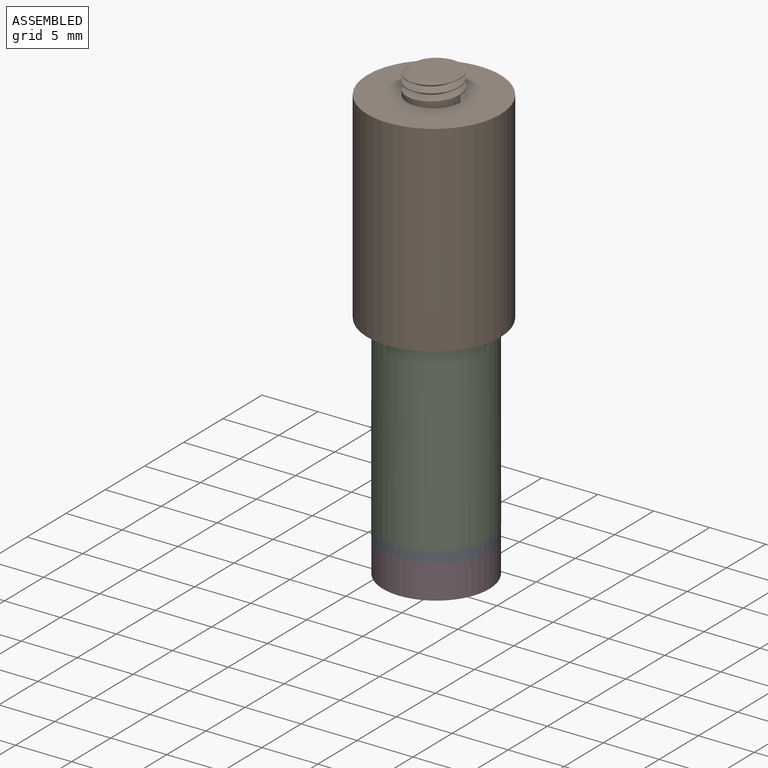
[diagram: assembled view]
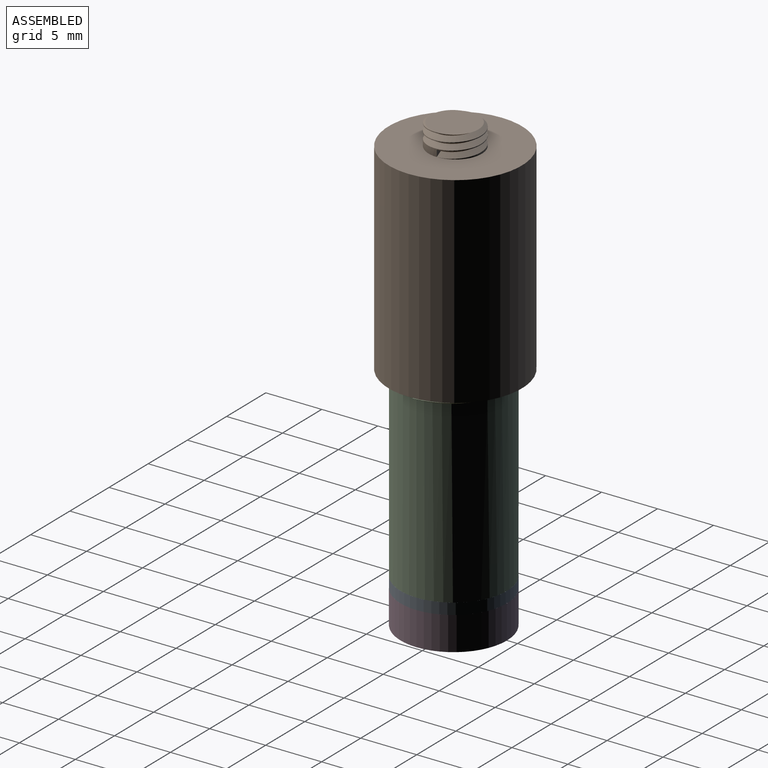
[diagram: assembled view, second angle]
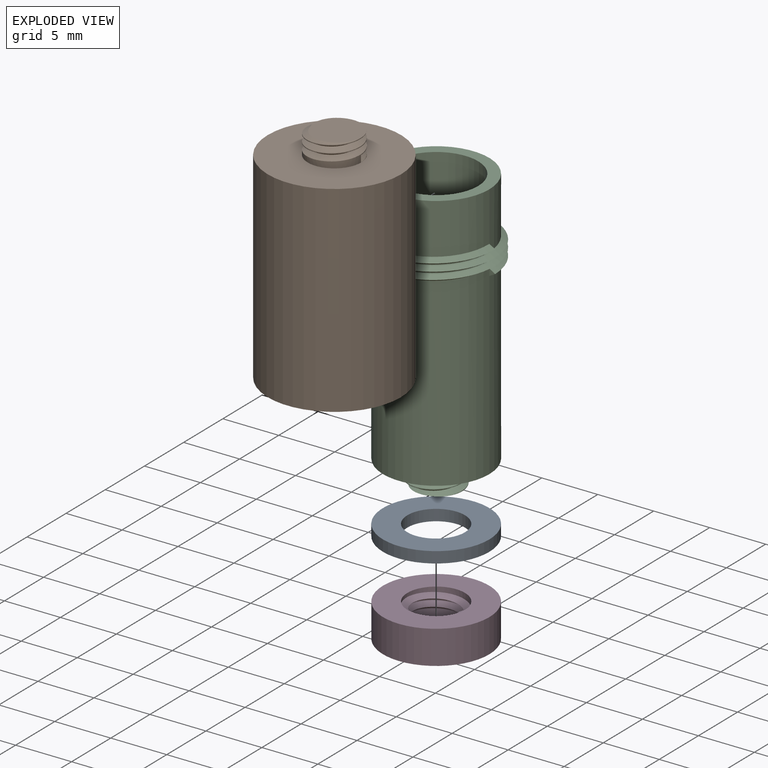
[diagram: exploded view]
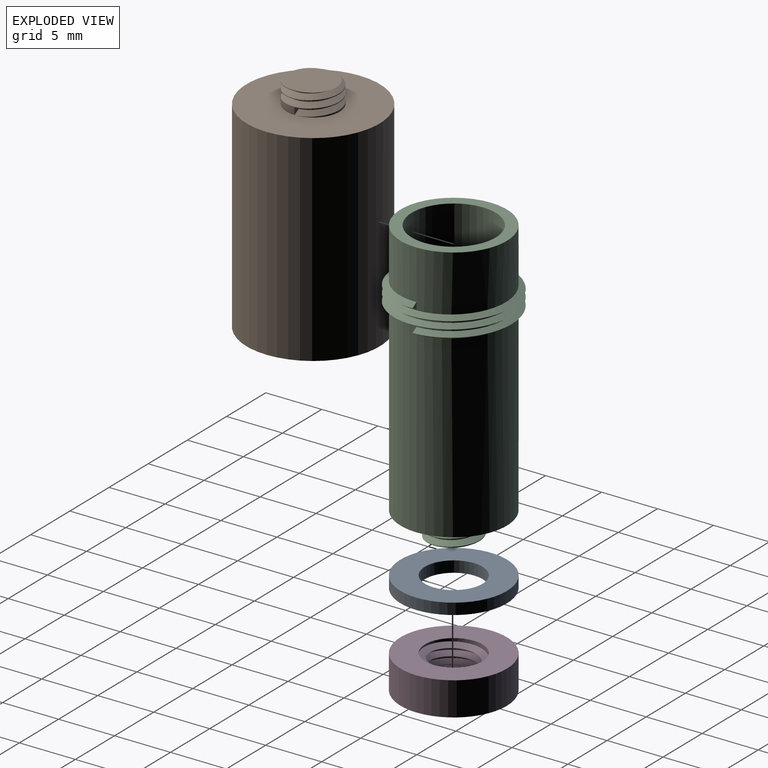
[diagram: exploded view, second angle]
ASSEMBLY  parts=4 mates=3
PART A: 4 faces, bbox 9.5x9.5x1 mm
  f0: cylinder r=2.58mm len=5.15mm, axis (0,0,1), area 16.2mm2, adj f2,f3
  f1: cylinder r=4.75mm len=9.5mm, axis (0,0,1), area 29.8mm2, adj f2,f3
  f2: plane 9.5x9.5mm, normal (0,0,-1), area 50.1mm2, adj f0,f1
  f3: plane 9.5x9.5mm, normal (0,0,1), area 50.1mm2, adj f0,f1
PART B: 16 faces, bbox 12.3x13.1x21.2 mm
  f0: cylinder r=2.38mm len=4.75mm, axis (0,0,-1), area 7mm2, adj f2,f12,f13,f14,f15
  f1: cylinder r=5.95mm len=18mm, axis (0,0,-1), area 672.9mm2, adj f2,f3
  f2: plane 11.9x11.9mm, normal (0,0,1), area 93.5mm2, adj f0,f1
  f3: plane 12.33x12.33mm, normal (0,0,-1), area 26.7mm2, adj f1,f4,f5,f11
  f4: bspline ~12.63x10.94mm, area 54.4mm2, adj f3,f5,f6,f8,f9,f10
  f5: bspline ~12.63x10.94mm, area 45.8mm2, adj f3,f4,f6,f9,f10,f11
  f6: plane 0.6x0.52mm, normal (0,-1,0), area 0.2mm2, adj f4,f5,f8
  f7: plane 9.9x9.9mm, normal (0,0,-1), area 77mm2, adj f8
  f8: cylinder r=4.95mm len=15.67mm, axis (0,0,-1), area 476.9mm2, adj f4,f6,f7,f9
  f9: cylinder r=4.95mm len=9.9mm, axis (0,0,-1), area 2.1mm2, adj f4,f5,f8,f10
  f10: cylinder r=4.95mm len=9.9mm, axis (0,0,-1), area 2.1mm2, adj f4,f5,f9,f11
  f11: cylinder r=4.95mm len=2.89mm, axis (0,0,-1), area 0.1mm2, adj f3,f5,f10
  f12: plane 4.7x4.69mm, normal (0,0,1), area 14.5mm2, adj f0,f14,f15
  f13: plane 0.6x0.52mm, normal (0,1,0), area 0.2mm2, adj f0,f14,f15
  f14: bspline ~5.49x4.75mm, area 22.2mm2, adj f0,f12,f13,f15
  f15: bspline ~5.49x4.75mm, area 18.5mm2, adj f0,f12,f13,f14
PART C: 17 faces, bbox 10.9x12.6x25.8 mm
  f0: cylinder r=2.38mm len=4.75mm, axis (0,0,1), area 7mm2, adj f12,f13,f14,f15,f16
  f1: cylinder r=3.75mm len=22mm, axis (0,0,-1), area 518.4mm2, adj f6,f7
  f2: cylinder r=4.75mm len=9.5mm, axis (0,0,-1), area 141.3mm2, adj f4,f6,f8,f11
  f3: cylinder r=4.75mm len=9.5mm, axis (0,0,-1), area 2mm2, adj f4,f5,f10,f11
  f4: cylinder r=4.75mm len=9.5mm, axis (0,0,-1), area 2mm2, adj f2,f3,f10,f11
  f5: cylinder r=4.75mm len=16.67mm, axis (0,0,-1), area 487.5mm2, adj f3,f9,f10,f12
  f6: plane 9.5x9.5mm, normal (0,0,1), area 26.7mm2, adj f1,f2
  f7: plane 7.5x7.5mm, normal (0,0,1), area 44.2mm2, adj f1
  f8: plane 0.6x0.52mm, normal (0,1,0), area 0.2mm2, adj f2,f10,f11
  f9: plane 0.6x0.52mm, normal (0,-1,0), area 0.2mm2, adj f5,f10,f11
  f10: bspline ~12.17x10.54mm, area 56.7mm2, adj f3,f4,f5,f8,f9,f11
  f11: bspline ~12.17x10.54mm, area 56.7mm2, adj f2,f3,f4,f8,f9,f10
  f12: plane 9.5x9.5mm, normal (0,0,-1), area 53.2mm2, adj f0,f5
  f13: plane 4.7x4.69mm, normal (0,0,-1), area 14.5mm2, adj f0,f15,f16
  f14: plane 0.6x0.52mm, normal (0,-1,0), area 0.2mm2, adj f0,f15,f16
  f15: bspline ~5.49x4.75mm, area 22.2mm2, adj f0,f13,f14,f16
  f16: bspline ~5.49x4.75mm, area 18.5mm2, adj f0,f13,f14,f15
PART D: 8 faces, bbox 9.9x9.9x3.4 mm
  f0: cylinder r=2.58mm len=5.15mm, axis (0,0,1), area 7.6mm2, adj f2,f3,f5,f6,f7
  f1: cylinder r=4.75mm len=9.5mm, axis (0,0,1), area 89.5mm2, adj f2,f4
  f2: plane 9.5x9.5mm, normal (0,0,1), area 50.1mm2, adj f0,f1
  f3: plane 5.1x5.09mm, normal (0,0,1), area 17.3mm2, adj f0,f5,f6
  f4: plane 9.5x9.5mm, normal (0,0,-1), area 70.9mm2, adj f1
  f5: bspline ~5.95x5.15mm, area 24.3mm2, adj f0,f3,f6,f7
  f6: bspline ~5.95x5.15mm, area 20.2mm2, adj f0,f3,f5,f7
  f7: plane 0.6x0.52mm, normal (0,1,0), area 0.2mm2, adj f0,f5,f6
PLACE A rot(axis=(1,0,0),180deg) t=(-9.56,16.62,-19.22)mm
PLACE B t=(-9.76,16.62,-15.62)mm
PLACE C t=(-9.56,16.62,-16.22)mm
PLACE D t=(-9.56,16.62,-16.22)mm
MATE fastened C.f8 <-> B.f6  axis (0,1,0) through (-4.64,16.62,1.08)mm
MATE fastened A.f1 <-> C.f2  axis (0,0,1) through (-9.56,16.62,-17.22)mm
MATE fastened A.f1 <-> D.f1  axis (0,0,-1) through (-9.56,16.62,-18.22)mm
